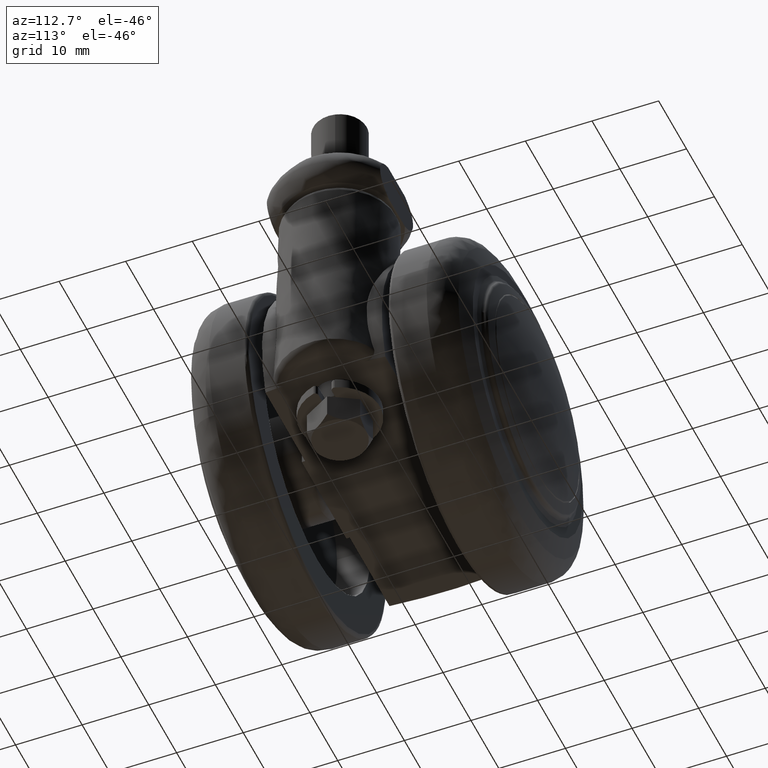
[diagram: clean part render]
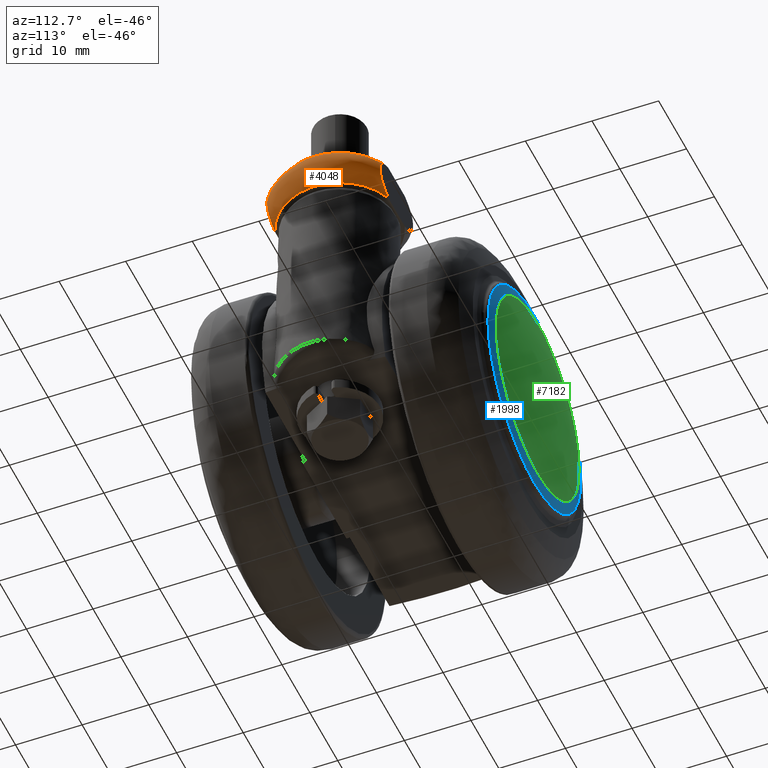
[diagram: same view with three faces highlighted in distinct colors, each labeled with its STEP entity id]
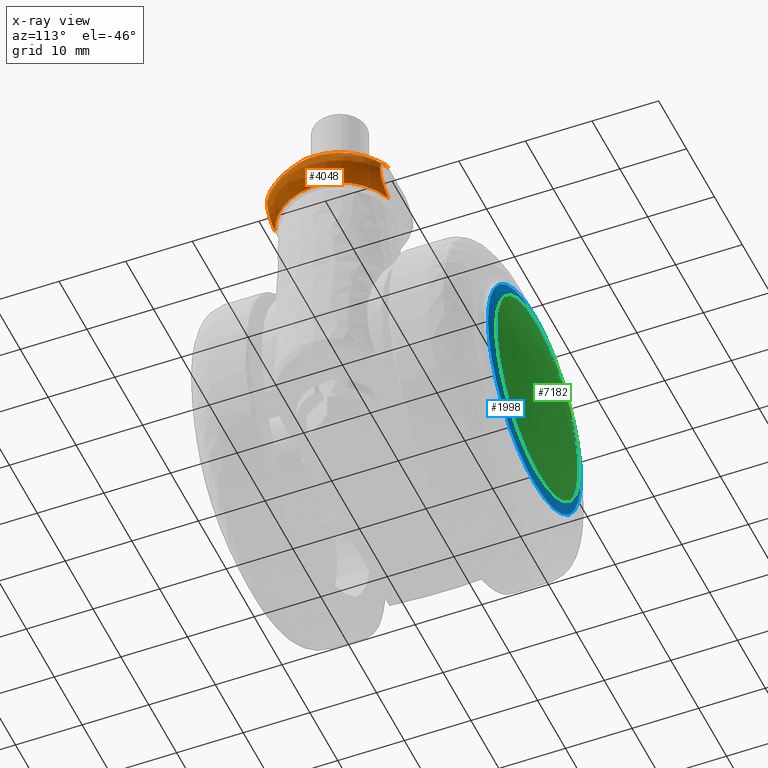
[diagram: x-ray of the same camera — body ghosted, the three highlighted faces saturated]
A machine part, auxiliary view with three faces highlighted in distinct colors.
The next image is the same camera in x-ray (body ghosted, the three faces saturated) — at least one of them is partly hidden behind the body in this view.
Their STEP definitions:

[orange] entity #4048 — the highlighted face is a freeform B-spline surface patch.
#3688=CARTESIAN_POINT('',(19.958037793544850,8.499999994596450,32.500000005045798));
#3689=VERTEX_POINT('',#3688);
#3695=CARTESIAN_POINT('',(19.958037795425351,8.500000000000000,26.500000000000000));
#3696=VERTEX_POINT('',#3695);
#3697=CARTESIAN_POINT('',(19.958037795425351,8.500000000000000,26.500000000000000));
#3698=CARTESIAN_POINT('',(19.958139269744439,8.499999999999998,26.500029413374651));
#3699=CARTESIAN_POINT('',(19.958240743661129,8.499999999999998,26.500058829011440));
#3700=CARTESIAN_POINT('',(20.078548745863309,8.500000000000000,26.534936910375588));
#3701=CARTESIAN_POINT('',(20.198461757832920,8.500000000000000,26.572989899942851));
#3702=CARTESIAN_POINT('',(20.435828226616358,8.499999999999998,26.655830103605378));
#3703=CARTESIAN_POINT('',(20.552949800198650,8.500000000000002,26.700486883416222));
#3704=CARTESIAN_POINT('',(20.899110623322780,8.500000000000000,26.845242753702660));
#3705=CARTESIAN_POINT('',(21.123012853375151,8.500000000000000,26.955988764278889));
#3706=CARTESIAN_POINT('',(21.391830260121740,8.500000000000000,27.117344879619470));
#3707=CARTESIAN_POINT('',(21.445035420831250,8.500000000000000,27.150773270818771));
#3708=CARTESIAN_POINT('',(21.550241285352062,8.499999999999998,27.220126394994200));
#3709=CARTESIAN_POINT('',(21.602194006807679,8.499999999999996,27.256028848875751));
#3710=CARTESIAN_POINT('',(21.754738035891720,8.500000000000000,27.366744122252150));
#3711=CARTESIAN_POINT('',(21.852472501096528,8.500000000000000,27.444844524373710));
#3712=CARTESIAN_POINT('',(22.039186992346089,8.500000000000000,27.610526069530831));
#3713=CARTESIAN_POINT('',(22.128172910583721,8.499999999999998,27.698100831534671));
#3714=CARTESIAN_POINT('',(22.254206197881139,8.500000000000002,27.837526279226349));
#3715=CARTESIAN_POINT('',(22.294973131226939,8.500000000000002,27.885348811349541));
#3716=CARTESIAN_POINT('',(22.373819089495459,8.499999999999996,27.983904783181689));
#3717=CARTESIAN_POINT('',(22.411862621631691,8.499999999999998,28.034623593010881));
#3718=CARTESIAN_POINT('',(22.520125668284582,8.500000000000000,28.189235329076912));
#3719=CARTESIAN_POINT('',(22.585054228589389,8.500000000000000,28.296242158357160));
#3720=CARTESIAN_POINT('',(22.699280846828010,8.499999999999998,28.518737407730491));
#3721=CARTESIAN_POINT('',(22.748624490317070,8.499999999999998,28.634314858047230));
#3722=CARTESIAN_POINT('',(22.829608118928341,8.499999999999998,28.874615751333032));
#3723=CARTESIAN_POINT('',(22.860261864555639,8.500000000000000,28.996410280920330));
#3724=CARTESIAN_POINT('',(22.901690135698331,8.499999999999998,29.243321444036450));
#3725=CARTESIAN_POINT('',(22.912471112496341,8.499999999999998,29.368436999463071));
#3726=CARTESIAN_POINT('',(22.912796695469542,8.500000000000000,29.527029104729440));
#3727=CARTESIAN_POINT('',(22.912195278158450,8.500000000000000,29.558933882000371));
#3728=CARTESIAN_POINT('',(22.909685980559800,8.500000000000000,29.622193628022160));
#3729=CARTESIAN_POINT('',(22.903963154885950,8.500000000000002,29.716699147251219));
#3730=CARTESIAN_POINT('',(22.892485631827810,8.499999999999998,29.810076277323049));
#3731=CARTESIAN_POINT('',(22.862084868953691,8.499999999999998,29.995370570852270));
#3732=CARTESIAN_POINT('',(22.831917094867411,8.499999999999998,30.116958776526399));
#3733=CARTESIAN_POINT('',(22.772177218056719,8.500000000000000,30.296500215328809));
#3734=CARTESIAN_POINT('',(22.749740366964140,8.500000000000002,30.356106583275270));
#3735=CARTESIAN_POINT('',(22.700507301192062,8.500000000000000,30.473200163087100));
#3736=CARTESIAN_POINT('',(22.673822688529661,8.499999999999998,30.530483034776839));
#3737=CARTESIAN_POINT('',(22.587958783445028,8.499999999999998,30.698780795703190));
#3738=CARTESIAN_POINT('',(22.522990691156490,8.499999999999998,30.806257828381021));
#3739=CARTESIAN_POINT('',(22.415028374153088,8.500000000000000,30.961050024535620));
#3740=CARTESIAN_POINT('',(22.377283306292391,8.500000000000004,31.011573238805880));
#3741=CARTESIAN_POINT('',(22.298398656266439,8.500000000000000,31.110545091445751));
#3742=CARTESIAN_POINT('',(22.257148190472520,8.500000000000000,31.159102218524929));
#3743=CARTESIAN_POINT('',(22.130065964369749,8.500000000000000,31.300028350958939));
#3744=CARTESIAN_POINT('',(22.040535189719289,8.500000000000000,31.388214328019469));
#3745=CARTESIAN_POINT('',(21.853153811242301,8.500000000000000,31.554613508295510));
#3746=CARTESIAN_POINT('',(21.755296325157570,8.499999999999998,31.632818461918049));
#3747=CARTESIAN_POINT('',(21.552152136482789,8.500000000000000,31.780323150740351));
#3748=CARTESIAN_POINT('',(21.446747984702199,8.499999999999998,31.849686345431540));
#3749=CARTESIAN_POINT('',(21.121083041117512,8.500000000000002,32.045179034215167));
#3750=CARTESIAN_POINT('',(20.896313278046950,8.500000000000000,32.156053288031167));
#3751=CARTESIAN_POINT('',(20.435273862928739,8.499999999999998,32.348594612440877));
#3752=CARTESIAN_POINT('',(20.198965929020851,8.499999999999998,32.430164455547647));
#3753=CARTESIAN_POINT('',(19.958037793544850,8.499999994596450,32.500000005045798));
#3754=B_SPLINE_CURVE_WITH_KNOTS('',3,(#3697,#3698,#3699,#3700,#3701,#3702,#3703,#3704,#3705,#3706,#3707,#3708,#3709,#3710,#3711,#3712,#3713,#3714,#3715,#3716,#3717,#3718,#3719,#3720,#3721,#3722,#3723,#3724,#3725,#3726,#3727,#3728,#3729,#3730,#3731,#3732,#3733,#3734,#3735,#3736,#3737,#3738,#3739,#3740,#3741,#3742,#3743,#3744,#3745,#3746,#3747,#3748,#3749,#3750,#3751,#3752,#3753),.UNSPECIFIED.,.F.,.U.,(4,2,2,2,2,2,2,2,2,2,2,2,2,2,2,2,1,2,2,2,2,2,2,2,2,2,2,2,4),(0.624986810001690,0.624999999999998,0.640624999999998,0.656249999999999,0.687500000000000,0.695312500000001,0.703125000000001,0.718750000000002,0.734375000000004,0.742187500000004,0.750000000000005,0.765625000000006,0.781250000000006,0.796875000000007,0.812500000000008,0.816406250000008,0.820312500000009,0.828125000000008,0.843750000000008,0.851562500000007,0.859375000000007,0.875000000000006,0.882812500000006,0.890625000000005,0.906250000000005,0.921875000000004,0.937500000000003,0.968750000000002,1.0),.UNSPECIFIED.);
#3755=EDGE_CURVE('',#3696,#3689,#3754,.T.);
#3902=CARTESIAN_POINT('',(19.958037793544900,-8.499999994596450,26.499999994954202));
#3903=VERTEX_POINT('',#3902);
#3909=CARTESIAN_POINT('',(19.958037795425351,-8.500000000000000,32.500000000000000));
#3910=VERTEX_POINT('',#3909);
#3911=CARTESIAN_POINT('',(19.958037793544900,-8.499999994596450,26.499999994954202));
#3912=CARTESIAN_POINT('',(19.958139266966899,-8.499999999999996,26.500029412569500));
#3913=CARTESIAN_POINT('',(19.958240741189961,-8.499999999999996,26.500058828295060));
#3914=CARTESIAN_POINT('',(20.078548743687040,-8.499999999999996,26.534936909705269));
#3915=CARTESIAN_POINT('',(20.198461755640690,-8.499999999999996,26.572989899224389));
#3916=CARTESIAN_POINT('',(20.435828224427009,-8.499999999999996,26.655830102794670));
#3917=CARTESIAN_POINT('',(20.552949798012168,-8.499999999999995,26.700486882556440));
#3918=CARTESIAN_POINT('',(20.899110621150079,-8.499999999999996,26.845242752684950));
#3919=CARTESIAN_POINT('',(21.123012851218299,-8.499999999999998,26.955988763142081));
#3920=CARTESIAN_POINT('',(21.391830257998361,-8.499999999999995,27.117344878305449));
#3921=CARTESIAN_POINT('',(21.445035418715261,-8.499999999999996,27.150773269467869));
#3922=CARTESIAN_POINT('',(21.550241283252490,-8.500000000000000,27.220126393566151));
#3923=CARTESIAN_POINT('',(21.602194004728130,-8.499999999999996,27.256028847414949));
#3924=CARTESIAN_POINT('',(21.754738033869760,-8.499999999999996,27.366744120687581));
#3925=CARTESIAN_POINT('',(21.852472499116491,-8.499999999999998,27.444844522736130));
#3926=CARTESIAN_POINT('',(22.039186990459250,-8.499999999999998,27.610526067737140));
#3927=CARTESIAN_POINT('',(22.128172908748098,-8.499999999999998,27.698100829657889));
#3928=CARTESIAN_POINT('',(22.254206196132039,-8.499999999999996,27.837526277214451));
#3929=CARTESIAN_POINT('',(22.294973129508332,-8.499999999999998,27.885348809290839));
#3930=CARTESIAN_POINT('',(22.373819087841770,-8.499999999999996,27.983904781025078));
#3931=CARTESIAN_POINT('',(22.411862620024969,-8.499999999999996,28.034623590819539));
#3932=CARTESIAN_POINT('',(22.520125666818789,-8.499999999999998,28.189235326777080));
#3933=CARTESIAN_POINT('',(22.585054227222649,-8.499999999999998,28.296242155982249));
#3934=CARTESIAN_POINT('',(22.699280845674839,-8.499999999999996,28.518737405196980));
#3935=CARTESIAN_POINT('',(22.748624489263459,-8.499999999999998,28.634314855385330));
#3936=CARTESIAN_POINT('',(22.829608118158951,-8.499999999999996,28.874615748585541));
#3937=CARTESIAN_POINT('',(22.860261863930411,-8.499999999999998,28.996410278129691));
#3938=CARTESIAN_POINT('',(22.901690135372341,-8.500000000000000,29.243321441157718));
#3939=CARTESIAN_POINT('',(22.912471112325360,-8.499999999999996,29.368436996539380));
#3940=CARTESIAN_POINT('',(22.912796695504660,-8.499999999999995,29.527029101747519));
#3941=CARTESIAN_POINT('',(22.912195278235359,-8.499999999999995,29.558933879020849));
#3942=CARTESIAN_POINT('',(22.909685980719001,-8.499999999999995,29.622193625049199));
#3943=CARTESIAN_POINT('',(22.903963155167851,-8.499999999999995,29.716699144287968));
#3944=CARTESIAN_POINT('',(22.892485632230859,-8.499999999999996,29.810076274369209));
#3945=CARTESIAN_POINT('',(22.862084869598458,-8.499999999999998,29.995370567917131));
#3946=CARTESIAN_POINT('',(22.831917095672559,-8.499999999999998,30.116958773603571));
#3947=CARTESIAN_POINT('',(22.772177219106531,-8.499999999999995,30.296500212425229));
#3948=CARTESIAN_POINT('',(22.749740368100721,-8.499999999999995,30.356106580369499));
#3949=CARTESIAN_POINT('',(22.700507302471550,-8.499999999999996,30.473200160246591));
#3950=CARTESIAN_POINT('',(22.673822689878779,-8.499999999999995,30.530483031967851));
#3951=CARTESIAN_POINT('',(22.587958784999149,-8.499999999999998,30.698780792986351));
#3952=CARTESIAN_POINT('',(22.522990692842079,-8.499999999999996,30.806257825722462));
#3953=CARTESIAN_POINT('',(22.415028376032279,-8.499999999999996,30.961050021962240));
#3954=CARTESIAN_POINT('',(22.377283308235491,-8.499999999999998,31.011573236260510));
#3955=CARTESIAN_POINT('',(22.298398658336591,-8.499999999999998,31.110545088955941));
#3956=CARTESIAN_POINT('',(22.257148192599029,-8.499999999999998,31.159102216071410));
#3957=CARTESIAN_POINT('',(22.130065966639300,-8.499999999999996,31.300028348632910));
#3958=CARTESIAN_POINT('',(22.040535192078991,-8.499999999999996,31.388214325772161));
#3959=CARTESIAN_POINT('',(21.853153813775648,-8.499999999999996,31.554613506197668));
#3960=CARTESIAN_POINT('',(21.755296327774410,-8.499999999999996,31.632818459890942));
#3961=CARTESIAN_POINT('',(21.552152139262098,-8.499999999999996,31.780323148849291));
#3962=CARTESIAN_POINT('',(21.446747987583411,-8.499999999999998,31.849686343592310));
#3963=CARTESIAN_POINT('',(21.121083044152360,-8.499999999999998,32.045179032612772));
#3964=CARTESIAN_POINT('',(20.896313281175420,-8.499999999999998,32.156053286564173));
#3965=CARTESIAN_POINT('',(20.435273866234930,-8.499999999999998,32.348594611220662));
#3966=CARTESIAN_POINT('',(20.198965932411010,-8.499999999999996,32.430164454438362));
#3967=CARTESIAN_POINT('',(19.958037795425358,-8.499999999999996,32.500000000000000));
#3968=B_SPLINE_CURVE_WITH_KNOTS('',3,(#3911,#3912,#3913,#3914,#3915,#3916,#3917,#3918,#3919,#3920,#3921,#3922,#3923,#3924,#3925,#3926,#3927,#3928,#3929,#3930,#3931,#3932,#3933,#3934,#3935,#3936,#3937,#3938,#3939,#3940,#3941,#3942,#3943,#3944,#3945,#3946,#3947,#3948,#3949,#3950,#3951,#3952,#3953,#3954,#3955,#3956,#3957,#3958,#3959,#3960,#3961,#3962,#3963,#3964,#3965,#3966,#3967),.UNSPECIFIED.,.F.,.U.,(4,2,2,2,2,2,2,2,2,2,2,2,2,2,2,2,1,2,2,2,2,2,2,2,2,2,2,2,4),(0.624986809961873,0.625000000000006,0.640625000000006,0.656250000000006,0.687500000000006,0.695312500000005,0.703125000000005,0.718750000000004,0.734375000000004,0.742187500000004,0.750000000000003,0.765625000000003,0.781250000000003,0.796875000000002,0.812500000000002,0.816406250000002,0.820312500000003,0.828125000000003,0.843750000000003,0.851562500000003,0.859375000000003,0.875000000000003,0.882812500000003,0.890625000000002,0.906250000000002,0.921875000000002,0.937500000000001,0.968750000000001,1.0),.UNSPECIFIED.);
#3969=EDGE_CURVE('',#3903,#3910,#3968,.T.);
#3991=CARTESIAN_POINT('',(18.893523001724830,8.565287110685731,32.686540035113005));
#3992=CARTESIAN_POINT('',(25.772090551660991,7.044646213724677,32.686540035113012));
#3993=CARTESIAN_POINT('',(25.772090551660991,5.371179E-016,32.686540035113005));
#3994=CARTESIAN_POINT('',(25.772090551660991,-7.044646213724677,32.686540035113012));
#3995=CARTESIAN_POINT('',(18.893523001724816,-8.565287110685731,32.686540035113005));
#3996=CARTESIAN_POINT('',(19.800044789915340,12.665907689823703,29.499999810880809));
#3997=CARTESIAN_POINT('',(29.971718021629481,10.417261849773459,29.499999810880791));
#3998=CARTESIAN_POINT('',(29.971718021629485,7.942624E-016,29.499999810880816));
#3999=CARTESIAN_POINT('',(29.971718021629481,-10.417261849773459,29.499999810880791));
#4000=CARTESIAN_POINT('',(19.800044789915340,-12.665907689823703,29.499999810880809));
#4001=CARTESIAN_POINT('',(18.893522962409623,8.565286932844751,26.313459826689048));
#4002=CARTESIAN_POINT('',(25.772090369526158,7.044646067456753,26.313459826689051));
#4003=CARTESIAN_POINT('',(25.772090369526161,5.371179E-016,26.313459826689055));
#4004=CARTESIAN_POINT('',(25.772090369526158,-7.044646067456753,26.313459826689051));
#4005=CARTESIAN_POINT('',(18.893522962409623,-8.565286932844751,26.313459826689048));
#4013=(BOUNDED_SURFACE()B_SPLINE_SURFACE(2,2,((#3991,#3996,#4001),(#3992,#3997,#4002),(#3993,#3998,#4003),(#3994,#3999,#4004),(#3995,#4000,#4005)),.UNSPECIFIED.,.F.,.F.,.U.)B_SPLINE_SURFACE_WITH_KNOTS((3,2,3),(3,3),(0.0,14.571170989671611,29.142341979343229),(0.0,7.944202741099539),.UNSPECIFIED.)GEOMETRIC_REPRESENTATION_ITEM()RATIONAL_B_SPLINE_SURFACE(((0.895075259100069,0.541037749396891,0.895075284501812),(0.706939725662800,0.427317227510470,0.706939745725360),(0.918443572227827,0.555162974525509,0.918443598292750),(0.706939725662800,0.427317227510470,0.706939745725360),(0.895075259100069,0.541037749396891,0.895075284501812)))REPRESENTATION_ITEM('')SURFACE());
#4014=CARTESIAN_POINT('',(19.958037795425351,8.500000000000000,26.500000000000000));
#4015=CARTESIAN_POINT('',(25.999999305343295,6.397370522784111,26.499999994954198));
#4016=CARTESIAN_POINT('',(25.999999305343291,0.0,26.499999994954202));
#4017=CARTESIAN_POINT('',(25.999999305343295,-6.397370522784102,26.499999994954198));
#4018=CARTESIAN_POINT('',(19.958037793544900,-8.499999994596454,26.499999994954202));
#4026=(BOUNDED_CURVE()B_SPLINE_CURVE(2,(#4014,#4015,#4016,#4017,#4018),.UNSPECIFIED.,.F.,.U.)B_SPLINE_CURVE_WITH_KNOTS((3,2,3),(0.0,0.500000000000000,1.0),.UNSPECIFIED.)CURVE()GEOMETRIC_REPRESENTATION_ITEM()RATIONAL_B_SPLINE_CURVE((1.0,0.815067755256455,1.0,0.815067755256455,1.0))REPRESENTATION_ITEM(''));
#4027=EDGE_CURVE('',#3696,#3903,#4026,.T.);
#4028=ORIENTED_EDGE('',*,*,#4027,.F.);
#4029=ORIENTED_EDGE('',*,*,#3755,.T.);
#4030=CARTESIAN_POINT('',(19.958037793544850,8.499999994596452,32.500000005045798));
#4031=CARTESIAN_POINT('',(25.999999305343277,6.397370522784126,32.500000005045813));
#4032=CARTESIAN_POINT('',(25.999999305343270,0.0,32.500000005045798));
#4033=CARTESIAN_POINT('',(25.999999305343277,-6.397370522784093,32.500000005045813));
#4034=CARTESIAN_POINT('',(19.958037795425351,-8.500000000000000,32.500000000000000));
#4042=(BOUNDED_CURVE()B_SPLINE_CURVE(2,(#4030,#4031,#4032,#4033,#4034),.UNSPECIFIED.,.F.,.U.)B_SPLINE_CURVE_WITH_KNOTS((3,2,3),(0.0,0.500000000000000,1.0),.UNSPECIFIED.)CURVE()GEOMETRIC_REPRESENTATION_ITEM()RATIONAL_B_SPLINE_CURVE((1.0,0.815067755256454,1.0,0.815067755256454,1.0))REPRESENTATION_ITEM(''));
#4043=EDGE_CURVE('',#3689,#3910,#4042,.T.);
#4044=ORIENTED_EDGE('',*,*,#4043,.T.);
#4045=ORIENTED_EDGE('',*,*,#3969,.F.);
#4046=EDGE_LOOP('',(#4028,#4029,#4044,#4045));
#4047=FACE_OUTER_BOUND('',#4046,.T.);
#4048=ADVANCED_FACE('',(#4047),#4013,.T.);

[blue] entity #1998 — the highlighted face is a freeform B-spline surface patch.
#275=CARTESIAN_POINT('',(14.994446135850531,-22.512973365200398,-1.782297696430476));
#276=VERTEX_POINT('',#275);
#282=CARTESIAN_POINT('',(0.0,-22.512973365200398,15.100000000000000));
#283=VERTEX_POINT('',#282);
#284=CARTESIAN_POINT('',(14.994446135850534,-22.512973365200398,-1.782297696430475));
#285=CARTESIAN_POINT('',(15.099999999999998,-22.512973365200395,-0.894274481564592));
#286=CARTESIAN_POINT('',(15.100000000000000,-22.512973365200398,1.789254E-015));
#287=CARTESIAN_POINT('',(15.100000000000005,-22.512973365200398,15.100000000000005));
#288=CARTESIAN_POINT('',(0.0,-22.512973365200398,15.100000000000000));
#296=(BOUNDED_CURVE()B_SPLINE_CURVE(2,(#284,#285,#286,#287,#288),.UNSPECIFIED.,.F.,.U.)B_SPLINE_CURVE_WITH_KNOTS((3,2,3),(0.229562690448439,0.250000000000000,0.500000000000000),.UNSPECIFIED.)CURVE()GEOMETRIC_REPRESENTATION_ITEM()RATIONAL_B_SPLINE_CURVE((0.956027179385483,0.976056202486226,1.0,0.707106781186547,1.0))REPRESENTATION_ITEM(''));
#297=EDGE_CURVE('',#276,#283,#296,.T.);
#299=CARTESIAN_POINT('',(-15.071836945563520,-22.512973365200398,0.921808594965005));
#300=VERTEX_POINT('',#299);
#301=CARTESIAN_POINT('',(0.0,-22.512973365200398,15.100000000000000));
#302=CARTESIAN_POINT('',(-14.204684604072089,-22.512973365200398,15.100000000000003));
#303=CARTESIAN_POINT('',(-15.071836945563517,-22.512973365200402,0.921808594965005));
#311=(BOUNDED_CURVE()B_SPLINE_CURVE(2,(#301,#302,#303),.UNSPECIFIED.,.F.,.U.)B_SPLINE_CURVE_WITH_KNOTS((3,3),(0.500000000000000,0.739333241030990),.UNSPECIFIED.)CURVE()GEOMETRIC_REPRESENTATION_ITEM()RATIONAL_B_SPLINE_CURVE((1.0,0.719603666661510,0.976072639171872))REPRESENTATION_ITEM(''));
#312=EDGE_CURVE('',#283,#300,#311,.T.);
#386=CARTESIAN_POINT('',(0.0,-22.512973365200398,-15.100000000000000));
#387=VERTEX_POINT('',#386);
#388=CARTESIAN_POINT('',(-15.071836945563517,-22.512973365200402,0.921808594965005));
#389=CARTESIAN_POINT('',(-15.100000000000000,-22.512973365200391,0.461334515664197));
#390=CARTESIAN_POINT('',(-15.100000000000000,-22.512973365200398,1.789254E-015));
#391=CARTESIAN_POINT('',(-15.100000000000005,-22.512973365200398,-15.100000000000005));
#392=CARTESIAN_POINT('',(0.0,-22.512973365200398,-15.100000000000000));
#400=(BOUNDED_CURVE()B_SPLINE_CURVE(2,(#388,#389,#390,#391,#392),.UNSPECIFIED.,.F.,.U.)B_SPLINE_CURVE_WITH_KNOTS((3,2,3),(0.739333241030990,0.750000000000000,1.0),.UNSPECIFIED.)CURVE()GEOMETRIC_REPRESENTATION_ITEM()RATIONAL_B_SPLINE_CURVE((0.976072639171872,0.987503114525037,1.0,0.707106781186547,1.0))REPRESENTATION_ITEM(''));
#401=EDGE_CURVE('',#300,#387,#400,.T.);
#403=CARTESIAN_POINT('',(0.0,-22.512973365200398,-15.100000000000000));
#404=CARTESIAN_POINT('',(13.411452677995506,-22.512973365200402,-15.100000000000005));
#405=CARTESIAN_POINT('',(14.994446135850534,-22.512973365200398,-1.782297696430475));
#413=(BOUNDED_CURVE()B_SPLINE_CURVE(2,(#403,#404,#405),.UNSPECIFIED.,.F.,.U.)B_SPLINE_CURVE_WITH_KNOTS((3,3),(0.0,0.229562690448439),.UNSPECIFIED.)CURVE()GEOMETRIC_REPRESENTATION_ITEM()RATIONAL_B_SPLINE_CURVE((1.0,0.731050578700322,0.956027179385483))REPRESENTATION_ITEM(''));
#414=EDGE_CURVE('',#387,#276,#413,.T.);
#1180=CARTESIAN_POINT('',(16.633451949998150,-22.069978467728610,-1.046488094724718));
#1181=VERTEX_POINT('',#1180);
#1195=CARTESIAN_POINT('',(0.0,-22.069978467936402,-16.666339162555900));
#1196=VERTEX_POINT('',#1195);
#1197=CARTESIAN_POINT('',(0.0,-22.069978467936402,-16.666339162555900));
#1198=CARTESIAN_POINT('',(15.650734216773253,-22.069978467936398,-16.666339162555889));
#1199=CARTESIAN_POINT('',(16.633451949998147,-22.069978467728607,-1.046488094724718));
#1207=(BOUNDED_CURVE()B_SPLINE_CURVE(2,(#1197,#1198,#1199),.UNSPECIFIED.,.F.,.U.)B_SPLINE_CURVE_WITH_KNOTS((3,3),(0.0,0.239031910740138),.UNSPECIFIED.)CURVE()GEOMETRIC_REPRESENTATION_ITEM()RATIONAL_B_SPLINE_CURVE((1.0,0.719956697056764,0.975427680453536))REPRESENTATION_ITEM(''));
#1208=EDGE_CURVE('',#1196,#1181,#1207,.T.);
#1210=CARTESIAN_POINT('',(0.0,-22.069978467936402,16.666339162555900));
#1211=VERTEX_POINT('',#1210);
#1212=CARTESIAN_POINT('',(0.0,-22.069978467936402,16.666339162555900));
#1213=CARTESIAN_POINT('',(-16.666339162555897,-22.069978467936405,16.666339162555897));
#1214=CARTESIAN_POINT('',(-16.666339162555900,-22.069978467936402,1.789254E-015));
#1215=CARTESIAN_POINT('',(-16.666339162555897,-22.069978467936405,-16.666339162555897));
#1216=CARTESIAN_POINT('',(0.0,-22.069978467936402,-16.666339162555900));
#1224=(BOUNDED_CURVE()B_SPLINE_CURVE(2,(#1212,#1213,#1214,#1215,#1216),.UNSPECIFIED.,.F.,.U.)B_SPLINE_CURVE_WITH_KNOTS((3,2,3),(0.500000000000000,0.750000000000000,1.0),.UNSPECIFIED.)CURVE()GEOMETRIC_REPRESENTATION_ITEM()RATIONAL_B_SPLINE_CURVE((1.0,0.707106781186547,1.0,0.707106781186547,1.0))REPRESENTATION_ITEM(''));
#1225=EDGE_CURVE('',#1211,#1196,#1224,.T.);
#1227=CARTESIAN_POINT('',(6.855630672894569,-22.069978465997242,15.191023315818910));
#1228=VERTEX_POINT('',#1227);
#1229=CARTESIAN_POINT('',(6.855630672894569,-22.069978465997238,15.191023315818910));
#1230=CARTESIAN_POINT('',(3.586557613566396,-22.069978467936394,16.666339162555907));
#1231=CARTESIAN_POINT('',(0.0,-22.069978467936402,16.666339162555900));
#1239=(BOUNDED_CURVE()B_SPLINE_CURVE(2,(#1229,#1230,#1231),.UNSPECIFIED.,.F.,.U.)B_SPLINE_CURVE_WITH_KNOTS((3,3),(0.430143025646457,0.500000000000000),.UNSPECIFIED.)CURVE()GEOMETRIC_REPRESENTATION_ITEM()RATIONAL_B_SPLINE_CURVE((0.882053103074830,0.918157463700087,1.0))REPRESENTATION_ITEM(''));
#1240=EDGE_CURVE('',#1228,#1211,#1239,.T.);
#1291=CARTESIAN_POINT('',(16.633451949998150,-22.069978467728610,-1.046488094724718));
#1292=CARTESIAN_POINT('',(16.666339162555904,-22.069978467936398,-0.523760808502205));
#1293=CARTESIAN_POINT('',(16.666339162555900,-22.069978467936402,1.789254E-015));
#1294=CARTESIAN_POINT('',(16.666339162555900,-22.069978467936391,10.763501037767956));
#1295=CARTESIAN_POINT('',(6.855630672894569,-22.069978465997234,15.191023315818903));
#1303=(BOUNDED_CURVE()B_SPLINE_CURVE(2,(#1291,#1292,#1293,#1294,#1295),.UNSPECIFIED.,.F.,.U.)B_SPLINE_CURVE_WITH_KNOTS((3,2,3),(0.239031910740138,0.250000000000000,0.430143025646456),.UNSPECIFIED.)CURVE()GEOMETRIC_REPRESENTATION_ITEM()RATIONAL_B_SPLINE_CURVE((0.975427680453536,0.987150084129783,1.0,0.788949317486460,0.882053103074830))REPRESENTATION_ITEM(''));
#1304=EDGE_CURVE('',#1181,#1228,#1303,.T.);
#1962=CARTESIAN_POINT('',(-17.805041908350375,-18.789210452853400,-17.805170034991008));
#1963=CARTESIAN_POINT('',(-9.125736689969410,-21.572989771254967,-18.251604780307645));
#1964=CARTESIAN_POINT('',(9.124419893353217,-21.572989767385426,-18.251604780307655));
#1965=CARTESIAN_POINT('',(17.802598369449683,-18.789994127756170,-17.805295714161627));
#1966=CARTESIAN_POINT('',(-18.251479984325378,-21.573031032207385,-9.125805641647862));
#1967=CARTESIAN_POINT('',(-9.360437294752948,-24.499999848291239,-9.360504689335180));
#1968=CARTESIAN_POINT('',(9.359086632689618,-24.499999844322179,-9.360504689335182));
#1969=CARTESIAN_POINT('',(18.248978407299081,-21.573854499380424,-9.125871671998606));
#1970=CARTESIAN_POINT('',(-18.251479984325378,-21.573031331886977,9.125804982395330));
#1971=CARTESIAN_POINT('',(-9.360437294752948,-24.500000155678041,9.360503912396620));
#1972=CARTESIAN_POINT('',(9.359086632689618,-24.500000151708981,9.360503912396618));
#1973=CARTESIAN_POINT('',(18.248978407299081,-21.573854799062183,9.125871012712963));
#1974=CARTESIAN_POINT('',(-17.805041988396116,-18.789211536687265,17.805168749592802));
#1975=CARTESIAN_POINT('',(-9.125736732024461,-21.572990895092921,18.251603366532059));
#1976=CARTESIAN_POINT('',(9.124419935402198,-21.572990891223391,18.251603366532059));
#1977=CARTESIAN_POINT('',(17.802598449485007,-18.789995211601205,17.805294428727265));
#1985=(BOUNDED_SURFACE()B_SPLINE_SURFACE(2,2,((#1962,#1966,#1970,#1974),(#1963,#1967,#1971,#1975),(#1964,#1968,#1972,#1976),(#1965,#1969,#1973,#1977)),.UNSPECIFIED.,.F.,.F.,.U.)B_SPLINE_SURFACE_WITH_KNOTS((3,1,3),(3,1,3),(12.230433914041519,30.297970171461749,48.362899330282211),(12.230303772401809,30.297970171461760,48.365634910154341),.UNSPECIFIED.)GEOMETRIC_REPRESENTATION_ITEM()RATIONAL_B_SPLINE_SURFACE(((1.051436705337843,1.025718167418620,1.025718167418620,1.051436700610922),(1.025718537919223,1.0,1.0,1.025718533192301),(1.025718537919223,1.0,1.0,1.025718533192301),(1.051429283743691,1.025710745824469,1.025710745824469,1.051429279016770)))REPRESENTATION_ITEM('')SURFACE());
#1986=ORIENTED_EDGE('',*,*,#1208,.T.);
#1987=ORIENTED_EDGE('',*,*,#1304,.T.);
#1988=ORIENTED_EDGE('',*,*,#1240,.T.);
#1989=ORIENTED_EDGE('',*,*,#1225,.T.);
#1990=EDGE_LOOP('',(#1986,#1987,#1988,#1989));
#1991=FACE_OUTER_BOUND('',#1990,.T.);
#1992=ORIENTED_EDGE('',*,*,#312,.F.);
#1993=ORIENTED_EDGE('',*,*,#297,.F.);
#1994=ORIENTED_EDGE('',*,*,#414,.F.);
#1995=ORIENTED_EDGE('',*,*,#401,.F.);
#1996=EDGE_LOOP('',(#1992,#1993,#1994,#1995));
#1997=FACE_BOUND('',#1996,.T.);
#1998=ADVANCED_FACE('',(#1991,#1997),#1985,.T.);

[green] entity #7182 — the highlighted face is a freeform B-spline surface patch.
#5397=CARTESIAN_POINT('',(5.338789607877375,22.559666129977408,-13.885995124140090));
#5398=VERTEX_POINT('',#5397);
#5412=CARTESIAN_POINT('',(0.0,22.559666136165301,14.876946406134900));
#5413=VERTEX_POINT('',#5412);
#5414=CARTESIAN_POINT('',(0.0,22.559666136165301,14.876946406134900));
#5415=CARTESIAN_POINT('',(14.876946406134905,22.559666136165308,14.876946406134905));
#5416=CARTESIAN_POINT('',(14.876946406134900,22.559666136165301,-2.621149E-016));
#5417=CARTESIAN_POINT('',(14.876946406134907,22.559666136165294,-10.218831749356060));
#5418=CARTESIAN_POINT('',(5.338789607877374,22.559666129977401,-13.885995124140088));
#5426=(BOUNDED_CURVE()B_SPLINE_CURVE(2,(#5414,#5415,#5416,#5417,#5418),.UNSPECIFIED.,.F.,.U.)B_SPLINE_CURVE_WITH_KNOTS((3,2,3),(0.500000000000000,0.750000000000000,0.939060941086626),.UNSPECIFIED.)CURVE()GEOMETRIC_REPRESENTATION_ITEM()RATIONAL_B_SPLINE_CURVE((1.0,0.707106781186548,1.0,0.778501329652950,0.892016635827898))REPRESENTATION_ITEM(''));
#5427=EDGE_CURVE('',#5413,#5398,#5426,.T.);
#5429=CARTESIAN_POINT('',(-14.409559793003419,22.559666132042331,-3.699746127121811));
#5430=VERTEX_POINT('',#5429);
#5431=CARTESIAN_POINT('',(-14.409559793003421,22.559666132042334,-3.699746127121811));
#5432=CARTESIAN_POINT('',(-14.876946406134898,22.559666136165301,-1.879395392829505));
#5433=CARTESIAN_POINT('',(-14.876946406134900,22.559666136165301,-2.621149E-016));
#5434=CARTESIAN_POINT('',(-14.876946406134905,22.559666136165308,14.876946406134905));
#5435=CARTESIAN_POINT('',(0.0,22.559666136165301,14.876946406134900));
#5443=(BOUNDED_CURVE()B_SPLINE_CURVE(2,(#5431,#5432,#5433,#5434,#5435),.UNSPECIFIED.,.F.,.U.)B_SPLINE_CURVE_WITH_KNOTS((3,2,3),(0.207556761753249,0.250000000000000,0.500000000000000),.UNSPECIFIED.)CURVE()GEOMETRIC_REPRESENTATION_ITEM()RATIONAL_B_SPLINE_CURVE((0.917433344548543,0.950274653332172,1.0,0.707106781186548,1.0))REPRESENTATION_ITEM(''));
#5444=EDGE_CURVE('',#5430,#5413,#5443,.T.);
#5489=CARTESIAN_POINT('',(0.0,22.559666136165301,-14.876946406134900));
#5490=VERTEX_POINT('',#5489);
#5491=CARTESIAN_POINT('',(0.0,22.559666136165301,-14.876946406134900));
#5492=CARTESIAN_POINT('',(-11.539742513959654,22.559666136165305,-14.876946406134907));
#5493=CARTESIAN_POINT('',(-14.409559793003421,22.559666132042334,-3.699746127121811));
#5501=(BOUNDED_CURVE()B_SPLINE_CURVE(2,(#5491,#5492,#5493),.UNSPECIFIED.,.F.,.U.)B_SPLINE_CURVE_WITH_KNOTS((3,3),(0.0,0.207556761753249),.UNSPECIFIED.)CURVE()GEOMETRIC_REPRESENTATION_ITEM()RATIONAL_B_SPLINE_CURVE((1.0,0.756832127854376,0.917433344548543))REPRESENTATION_ITEM(''));
#5502=EDGE_CURVE('',#5490,#5430,#5501,.T.);
#5504=CARTESIAN_POINT('',(5.338789607877376,22.559666129977408,-13.885995124140091));
#5505=CARTESIAN_POINT('',(2.761361758665695,22.559666136165294,-14.876946406134904));
#5506=CARTESIAN_POINT('',(0.0,22.559666136165301,-14.876946406134900));
#5514=(BOUNDED_CURVE()B_SPLINE_CURVE(2,(#5504,#5505,#5506),.UNSPECIFIED.,.F.,.U.)B_SPLINE_CURVE_WITH_KNOTS((3,3),(0.939060941086626,1.0),.UNSPECIFIED.)CURVE()GEOMETRIC_REPRESENTATION_ITEM()RATIONAL_B_SPLINE_CURVE((0.892016635827897,0.928605451533597,1.0))REPRESENTATION_ITEM(''));
#5515=EDGE_CURVE('',#5398,#5490,#5514,.T.);
#7152=CARTESIAN_POINT('',(-15.983123426069543,19.914280247525529,15.983659148786696));
#7153=CARTESIAN_POINT('',(-8.152695824474302,22.160830717208285,16.305938173459825));
#7154=CARTESIAN_POINT('',(8.152947529996341,22.160830717208285,16.305938173459825));
#7155=CARTESIAN_POINT('',(15.983597380503841,19.914144267764986,15.983639641802455));
#7156=CARTESIAN_POINT('',(-16.305413688529732,22.160984356406441,8.152980106889846));
#7157=CARTESIAN_POINT('',(-8.320473031786506,24.499999999999989,8.320751917602607));
#7158=CARTESIAN_POINT('',(8.320729917245398,24.499999999999989,8.320751917602607));
#7159=CARTESIAN_POINT('',(16.305896798698949,22.160842837456133,8.152969956085341));
#7160=CARTESIAN_POINT('',(-16.305413688529732,22.160984356406441,-8.152979647160414));
#7161=CARTESIAN_POINT('',(-8.320473031786506,24.499999999999989,-8.320751448412874));
#7162=CARTESIAN_POINT('',(8.320729917245398,24.499999999999989,-8.320751448412874));
#7163=CARTESIAN_POINT('',(16.305896798698949,22.160842837456133,-8.152969496356480));
#7164=CARTESIAN_POINT('',(-15.983123461697668,19.914280495891241,-15.983658283131041));
#7165=CARTESIAN_POINT('',(-8.152695843013976,22.160830975690565,-16.305937291082810));
#7166=CARTESIAN_POINT('',(8.152947548536588,22.160830975690565,-16.305937291082810));
#7167=CARTESIAN_POINT('',(15.983597416132975,19.914144516130087,-15.983638776147810));
#7175=(BOUNDED_SURFACE()B_SPLINE_SURFACE(2,2,((#7152,#7156,#7160,#7164),(#7153,#7157,#7161,#7165),(#7154,#7158,#7162,#7166),(#7155,#7159,#7163,#7167)),.UNSPECIFIED.,.F.,.F.,.U.)B_SPLINE_SURFACE_WITH_KNOTS((3,1,3),(3,1,3),(13.132993130683900,29.227830386958740,45.323164553642272),(13.132453663539890,29.227830386958750,45.323206202793124),.UNSPECIFIED.)GEOMETRIC_REPRESENTATION_ITEM()RATIONAL_B_SPLINE_SURFACE(((1.041157327010971,1.020577973760905,1.020577973760905,1.041157324690118),(1.020579353250067,1.0,1.0,1.020579350929214),(1.020579353250067,1.0,1.0,1.020579350929214),(1.041158597675227,1.020579244425160,1.020579244425160,1.041158595354374)))REPRESENTATION_ITEM('')SURFACE());
#7176=ORIENTED_EDGE('',*,*,#5502,.T.);
#7177=ORIENTED_EDGE('',*,*,#5444,.T.);
#7178=ORIENTED_EDGE('',*,*,#5427,.T.);
#7179=ORIENTED_EDGE('',*,*,#5515,.T.);
#7180=EDGE_LOOP('',(#7176,#7177,#7178,#7179));
#7181=FACE_OUTER_BOUND('',#7180,.T.);
#7182=ADVANCED_FACE('',(#7181),#7175,.T.);